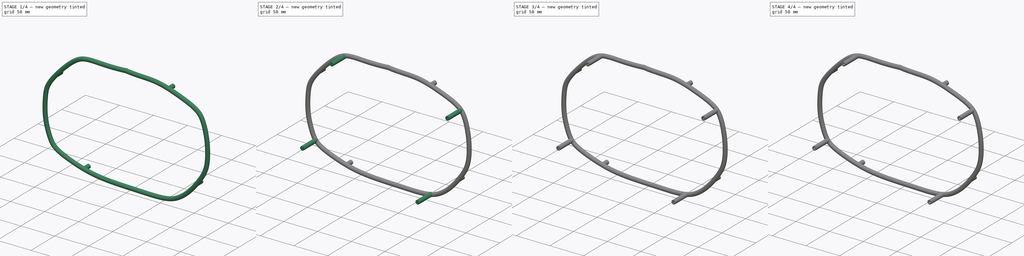
[diagram: build sequence overview — one tinted view per stage of 4, left to right]
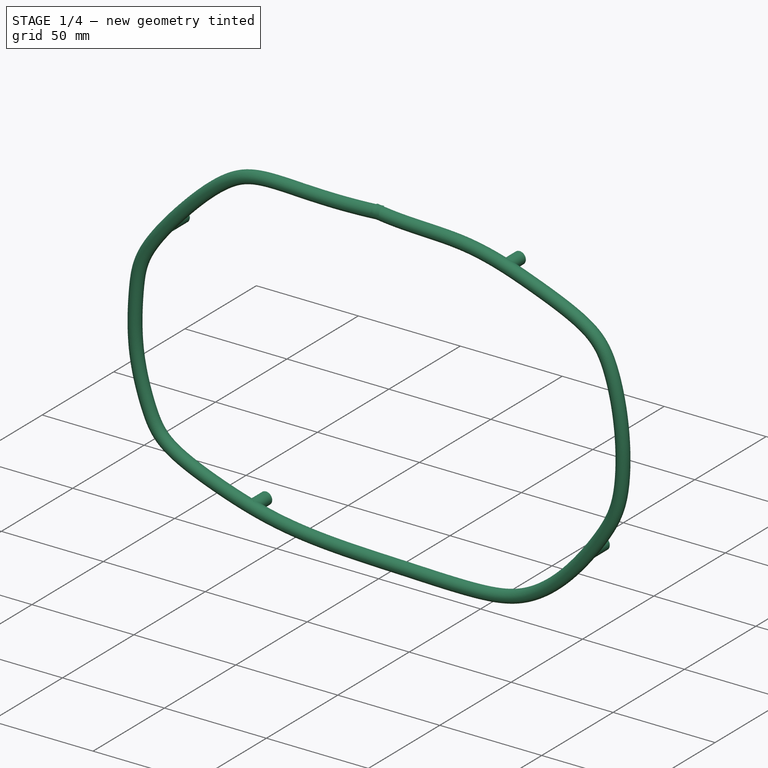
[diagram: stage 1 of 4 — iso view after this stage's code; geometry added in this stage tinted green]
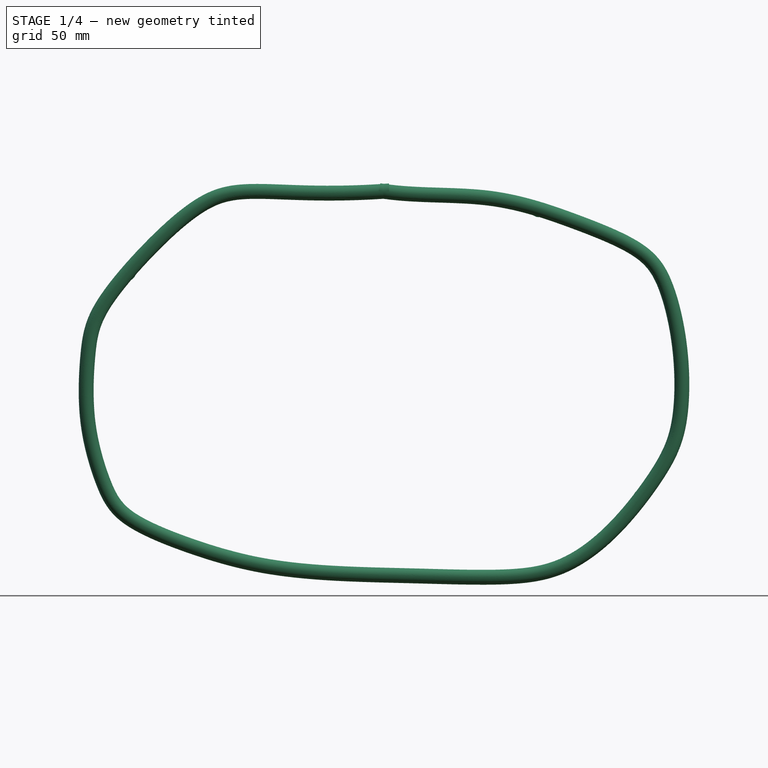
[diagram: stage 1 of 4 — front view after this stage's code; geometry added in this stage tinted green]
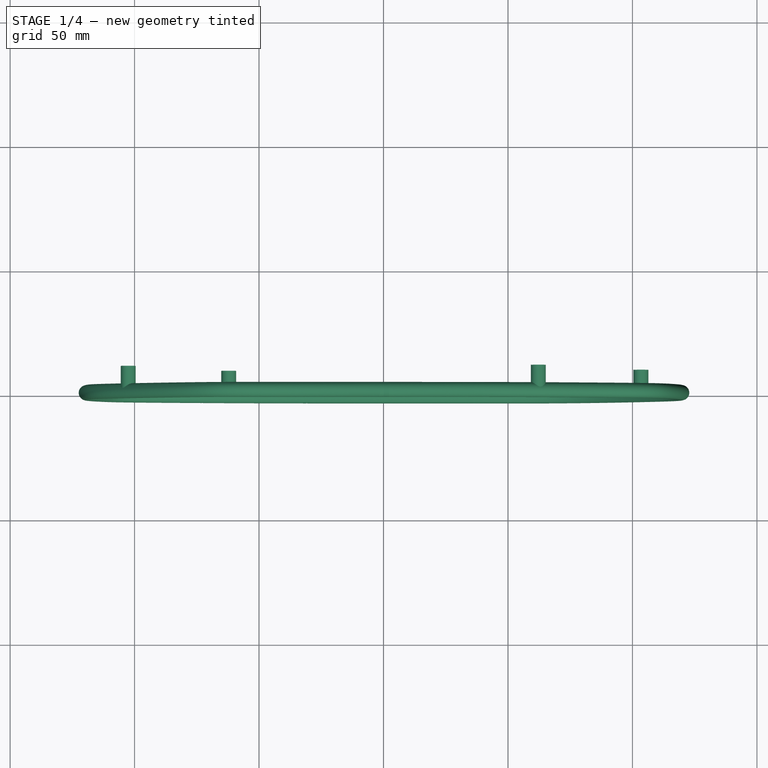
[diagram: stage 1 of 4 — top view after this stage's code; geometry added in this stage tinted green]
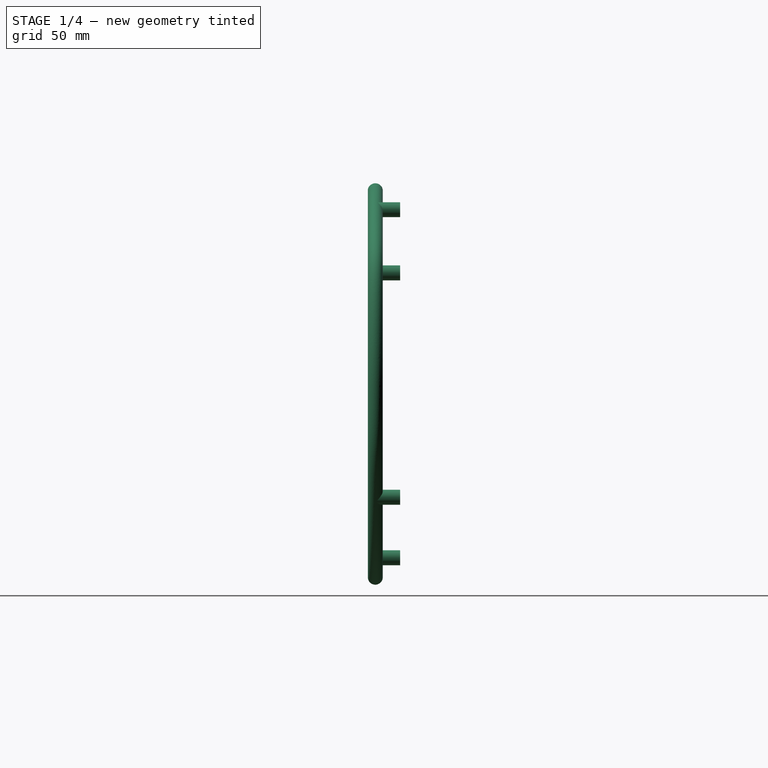
[diagram: stage 1 of 4 — right view after this stage's code; geometry added in this stage tinted green]
FCSTD DOCUMENT  (FreeCAD 0.20R29177 (Git))
Label: pip_feed_ring06
License: All rights reserved
LicenseURL: http://en.wikipedia.org/wiki/All_rights_reserved
objects: Sketcher::SketchObject×9, Part::Extrusion×4, Part::Cut×3, Part::Sweep×2, Part::Fuse×2, Spreadsheet::Sheet×1, PartDesign::Body×1
note: 21 computed .brp shape members not serialized (recipe doc carries the construction recipe); baked Part::Feature solids carry a one-line shape summary decoded from their .brp

FEATURE [Part::Extrusion] Extrude001
  Base = -> Sketch008
  Dir = (0,-1,2e-16)
  DirMode = 2
  FaceMakerClass = Part::FaceMakerBullseye
  LengthFwd = -10
  LengthRev = 0
  Solid = true
  Symmetric = false
FEATURE [Part::Sweep] Sweep
  Frenet = false
  Sections = -> [Sketch003]
  Solid = true
  Spine = -> Sketch002 [Edge1]
  Transition = 1
FEATURE [Part::Sweep] Sweep001
  Frenet = false
  Sections = -> [Sketch004]
  Solid = true
  Spine = -> Sketch002 [Edge1]
  Transition = 1
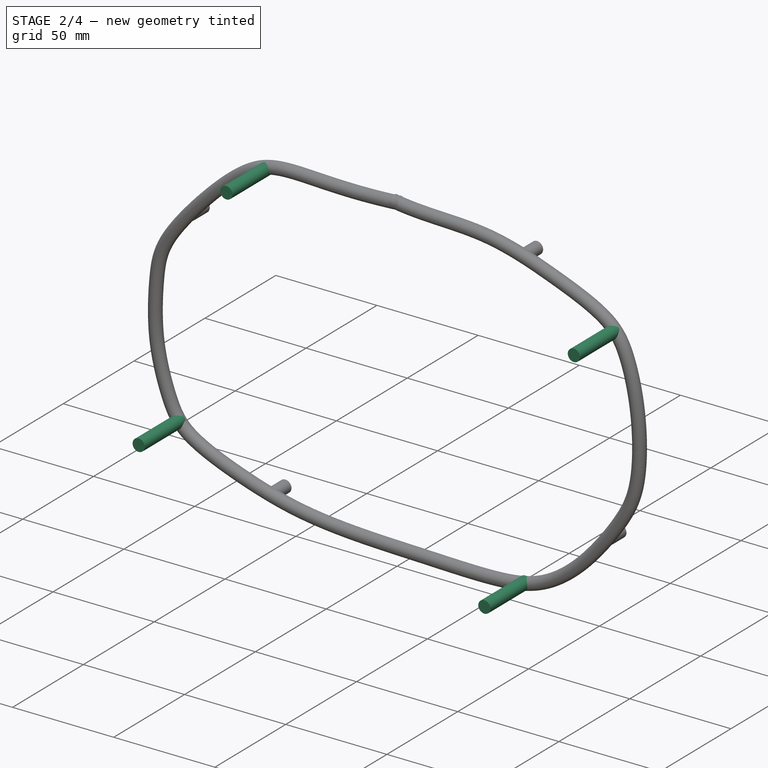
[diagram: stage 2 of 4 — iso view after this stage's code; geometry added in this stage tinted green]
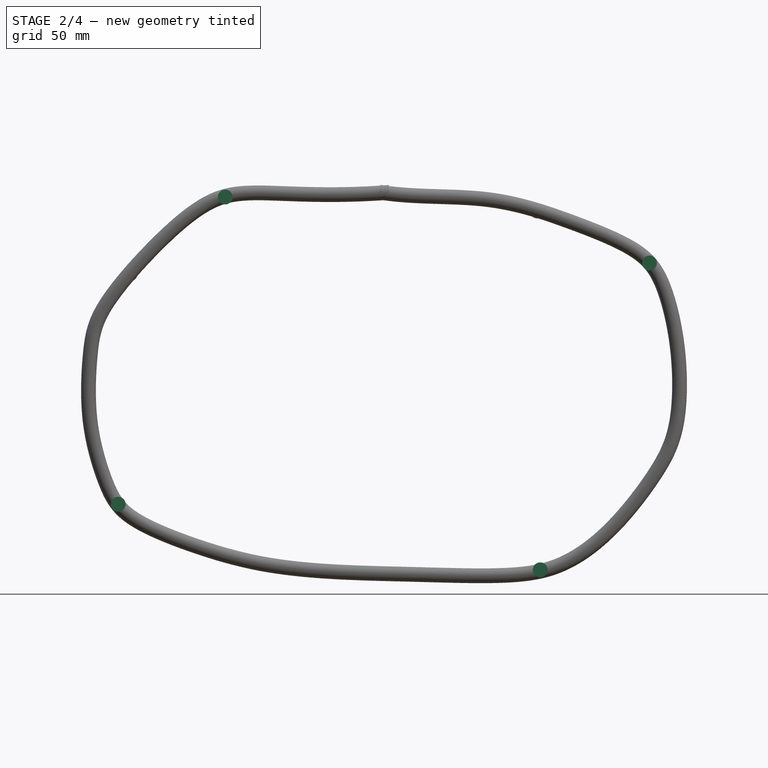
[diagram: stage 2 of 4 — front view after this stage's code; geometry added in this stage tinted green]
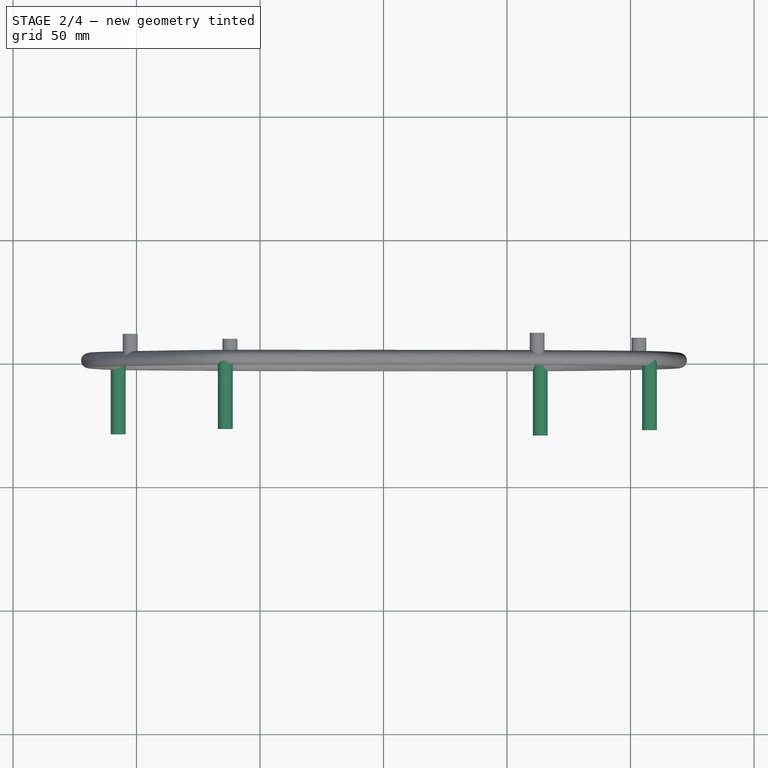
[diagram: stage 2 of 4 — top view after this stage's code; geometry added in this stage tinted green]
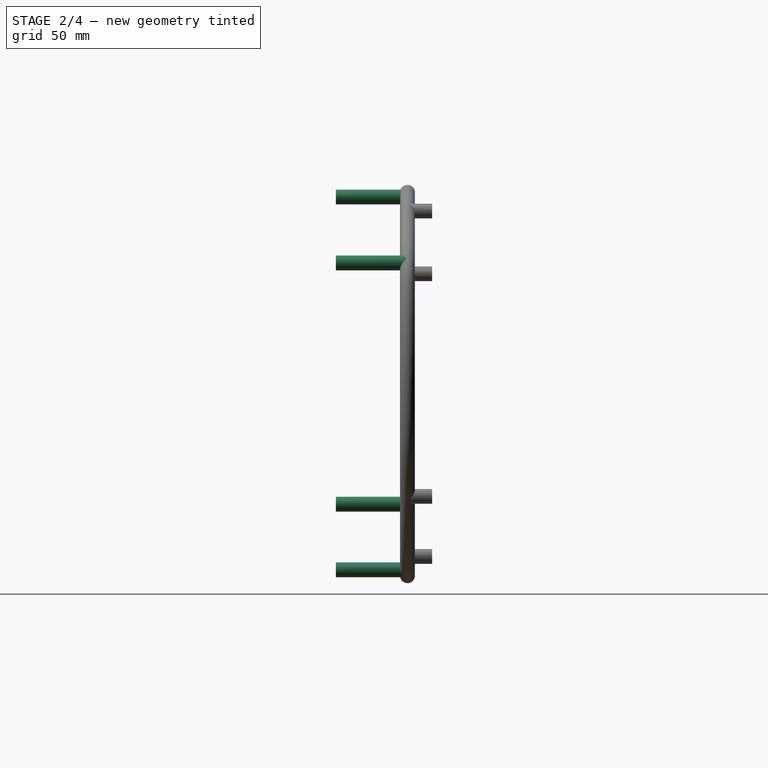
[diagram: stage 2 of 4 — right view after this stage's code; geometry added in this stage tinted green]
FEATURE [Spreadsheet::Sheet] Spreadsheet
  cells = B2=top ; C2=spring; D2=module; B4=horizon; C4(hrz)=230; E4=pip rad; F4=in; G4(pip_in)=1.5; B5=vertical; C5(vrt)=145; F5=out; G5(pip_out)=3; B6=spring place; C6(spl)=30; B7=angle10; C7(an10)=5; E7=con pip; F7=in; G7(con_in)=10; B8=angle20; C8(an20)=15; F8=0ut; G8(con_out)=29; B9=angl30; C9(an30)=30; B10=angl50; C10(an50)=50; B11=an70; C11(an70)=70; B12=body; C12(body)=15; B13=bottm; C13(btm)=2
FEATURE [Sketcher::SketchObject] Sketch
  FullyConstrained = false
  MapMode = 5
  Placement = pos=(0,0,0) rot=(1,0,0;1.5708rad)
  Support = -> [XZ_Plane]
  expr: Constraints[11] = Spreadsheet.hrz
  expr: Constraints[13] = Spreadsheet.an10
  expr: Constraints[15] = Spreadsheet.spl
  expr: Constraints[16] = Spreadsheet.an20
  expr: Constraints[18] = Spreadsheet.an30
  expr: Constraints[20] = Spreadsheet.spl
  expr: Constraints[21] = Spreadsheet.an50
  expr: Constraints[24] = Spreadsheet.an70
  expr: Constraints[2] = Spreadsheet.spl
  expr: Constraints[6] = Spreadsheet.vrt
  expr: Constraints[7] = Spreadsheet.spl
  sketch-geometry (48):
    g0: LineSegment StartX=-115 StartY=15 StartZ=0 EndX=-115 EndY=-15 EndZ=0
    g1: LineSegment StartX=115 StartY=15 StartZ=0 EndX=115 EndY=-15 EndZ=0
    g2: LineSegment StartX=-15 StartY=72.5 StartZ=0 EndX=15 EndY=72.5 EndZ=0
    g3: LineSegment StartX=-15 StartY=-72.5 StartZ=0 EndX=15 EndY=-72.5 EndZ=0
    g4: LineSegment StartX=15 StartY=72.5 StartZ=0 EndX=46.6098 EndY=69.7345 EndZ=0
    g5: LineSegment StartX=46.6098 StartY=69.7345 StartZ=0 EndX=75.5875 EndY=61.9699 EndZ=0
    g6: LineSegment StartX=75.5875 StartY=61.9699 StartZ=0 EndX=90.0175 EndY=53.6388 EndZ=0
    g7: LineSegment StartX=90.0175 StartY=53.6388 StartZ=0 EndX=109.301 EndY=30.6574 EndZ=0
    g8: LineSegment StartX=109.301 StartY=30.6574 StartZ=0 EndX=115 EndY=15 EndZ=0
    g9: LineSegment StartX=-15 StartY=72.5 StartZ=0 EndX=-46.6098 EndY=69.7345 EndZ=0
    g10: LineSegment StartX=-46.6098 StartY=69.7345 StartZ=0 EndX=-75.5875 EndY=61.9699 EndZ=0
    g11: LineSegment StartX=-75.5875 StartY=61.9699 StartZ=0 EndX=-90.0175 EndY=53.6388 EndZ=0
    g12: LineSegment StartX=-90.0175 StartY=53.6388 StartZ=0 EndX=-109.301 EndY=30.6574 EndZ=0
    g13: LineSegment StartX=-109.301 StartY=30.6574 StartZ=0 EndX=-115 EndY=15 EndZ=0
    g14: LineSegment StartX=-115 StartY=-15 StartZ=0 EndX=-109.301 EndY=-30.6574 EndZ=0
    g15: LineSegment StartX=-109.301 StartY=-30.6574 StartZ=0 EndX=-90.0175 EndY=-53.6388 EndZ=0
    g16: LineSegment StartX=-90.0175 StartY=-53.6388 StartZ=0 EndX=-75.5875 EndY=-61.9699 EndZ=0
    g17: LineSegment StartX=-75.5875 StartY=-61.9699 StartZ=0 EndX=-46.6098 EndY=-69.7345 EndZ=0
    g18: LineSegment StartX=-46.6098 StartY=-69.7345 StartZ=0 EndX=-15 EndY=-72.5 EndZ=0
    g19: LineSegment StartX=15 StartY=-72.5 StartZ=0 EndX=46.6098 EndY=-69.7345 EndZ=0
    g20: LineSegment StartX=46.6098 StartY=-69.7345 StartZ=0 EndX=75.5875 EndY=-61.9699 EndZ=0
    g21: LineSegment StartX=75.5875 StartY=-61.9699 StartZ=0 EndX=90.0175 EndY=-53.6388 EndZ=0
    g22: LineSegment StartX=90.0175 StartY=-53.6388 StartZ=0 EndX=109.301 EndY=-30.6574 EndZ=0
    g23: LineSegment StartX=109.301 StartY=-30.6574 StartZ=0 EndX=115 EndY=-15 EndZ=0
    g24: LineSegment StartX=-16.1366 StartY=78.5 StartZ=0 EndX=15.4095 EndY=78.5 EndZ=0
    g25: LineSegment StartX=15.4095 StartY=78.5 StartZ=0 EndX=47.6441 EndY=75.6667 EndZ=0
    g26: LineSegment StartX=47.6441 StartY=75.6667 StartZ=0 EndX=77.2705 EndY=67.9998 EndZ=0
    g27: LineSegment StartX=77.2705 StartY=67.9998 StartZ=0 EndX=95.3281 EndY=56.6387 EndZ=0
    g28: LineSegment StartX=95.3281 StartY=56.6387 StartZ=0 EndX=114.698 EndY=33.4043 EndZ=0
    g29: LineSegment StartX=114.698 StartY=33.4043 StartZ=0 EndX=121 EndY=15.3335 EndZ=0
    g30: LineSegment StartX=121 StartY=15.3335 StartZ=0 EndX=121 EndY=-16.058 EndZ=0
    g31: LineSegment StartX=121 StartY=-16.058 StartZ=0 EndX=114.609 EndY=-33.6162 EndZ=0
    g32: LineSegment StartX=114.609 StartY=-33.6162 StartZ=0 EndX=95.0311 EndY=-56.9971 EndZ=0
    g33: LineSegment StartX=95.0311 StartY=-56.9971 StartZ=0 EndX=76.551 EndY=-68.4292 EndZ=0
    g34: LineSegment StartX=76.551 StartY=-68.4292 StartZ=0 EndX=47.3548 EndY=-75.733 EndZ=0
    g35: LineSegment StartX=47.3548 StartY=-75.733 StartZ=0 EndX=15 EndY=-78.5 EndZ=0
    g36: LineSegment StartX=15 StartY=-78.5 StartZ=0 EndX=-15.3942 EndY=-78.5 EndZ=0
    g37: LineSegment StartX=-15.3942 StartY=-78.5 StartZ=0 EndX=-48.4588 EndY=-75.5952 EndZ=0
    g38: LineSegment StartX=-48.4588 StartY=-75.5952 StartZ=0 EndX=-78.4241 EndY=-67.4604 EndZ=0
    g39: LineSegment StartX=-78.4241 StartY=-67.4604 StartZ=0 EndX=-95.6316 EndY=-57.2903 EndZ=0
    g40: LineSegment StartX=-95.6316 StartY=-57.2903 StartZ=0 EndX=-114.801 EndY=-33.3899 EndZ=0
    g41: LineSegment StartX=-114.801 StartY=-33.3899 StartZ=0 EndX=-121 EndY=-16.0847 EndZ=0
    g42: LineSegment StartX=-121 StartY=-16.0847 StartZ=0 EndX=-121 EndY=15.8705 EndZ=0
    g43: LineSegment StartX=-121 StartY=15.8705 StartZ=0 EndX=-116.314 EndY=31.6792 EndZ=0
    g44: LineSegment StartX=-116.314 StartY=31.6792 StartZ=0 EndX=-93.3221 EndY=58.6532 EndZ=0
    g45: LineSegment StartX=-93.3221 StartY=58.6532 StartZ=0 EndX=-78.9524 EndY=67.2703 EndZ=0
    g46: LineSegment StartX=-78.9524 StartY=67.2703 StartZ=0 EndX=-48.5294 EndY=75.586 EndZ=0
    g47: LineSegment StartX=-48.5294 StartY=75.586 StartZ=0 EndX=-16.1366 EndY=78.5 EndZ=0
  constraints (106):
    c: Vertical(g0)
    c: Horizontal(g3)
    c: DistanceX(g2,g2) = 30
    c: Symmetric(g2,g2,g-2)
    c: Equal(g3,g2)
    c: Symmetric(g2,g3,g-1)
    c: Distance(g3,g2) = 145
    c: DistanceY(g1,g1) = 30
    c: Equal(g1,g0)
    c: Symmetric(g1,g1,g-1)
    c: Symmetric(g1,g0,g-1)
    c: Distance(g1,g0) = 230
    c: Coincident(g4,g2)
    c: Angle(g4,g-1) = 0.0872665
    c: Coincident(g5,g4)
    c: Distance(g4,g5) = 30
    c: Angle(g5,g-1) = 0.261799
    c: Coincident(g6,g5)
    c: Angle(g6,g-1) = 0.523599
    c: Coincident(g7,g6)
    c: Distance(g6,g7) = 30
    c: Angle(g7,g-1) = 0.872665
    c: Coincident(g8,g7)
    c: Coincident(g8,g1)
    c: Angle(g8,g-1) = 1.22173
    c: Equal(g6,g8)
    c: Coincident(g9,g2)
    c: Symmetric(g9,g4,g-2)
    c: Coincident(g10,g9)
    c: Symmetric(g10,g5,g-2)
    c: Coincident(g11,g10)
    c: Symmetric(g11,g6,g-2)
    c: Coincident(g12,g11)
    c: Symmetric(g12,g7,g-2)
    c: Coincident(g13,g12)
    c: Coincident(g13,g0)
    c: Coincident(g14,g0)
    c: Coincident(g15,g14)
    c: Coincident(g16,g15)
    c: Coincident(g17,g16)
    c: Coincident(g18,g17)
    c: Coincident(g18,g3)
    c: Symmetric(g14,g7,g-1)
    c: Symmetric(g15,g6,g-1)
    c: Symmetric(g16,g5,g-1)
    c: Symmetric(g17,g4,g-1)
    c: Coincident(g19,g3)
    c: Coincident(g20,g19)
    c: Coincident(g21,g20)
    c: Coincident(g22,g21)
    c: Coincident(g23,g22)
    c: Coincident(g23,g1)
    c: Symmetric(g19,g4,g-1)
    c: Symmetric(g20,g5,g-1)
    c: Symmetric(g21,g6,g-1)
    c: Symmetric(g22,g7,g-1)
    c: Horizontal(g24)
    c: Coincident(g24,g25)
    c: Coincident(g25,g26)
    c: Coincident(g26,g27)
    c: Coincident(g27,g28)
    c: Coincident(g28,g29)
    c: Coincident(g29,g30)
    c: Vertical(g30)
    c: Coincident(g30,g31)
    c: Coincident(g31,g32)
    c: Coincident(g32,g33)
    c: Coincident(g33,g34)
    c: Coincident(g34,g35)
    c: Coincident(g35,g36)
    c: Horizontal(g36)
    c: Coincident(g36,g37)
    c: Coincident(g37,g38)
    c: Coincident(g38,g39)
    c: Coincident(g39,g40)
    c: Coincident(g40,g41)
    c: Coincident(g41,g42)
    c: Vertical(g42)
    c: Coincident(g42,g43)
    c: Coincident(g43,g44)
    c: Coincident(g44,g45)
    c: Coincident(g45,g46)
    c: Coincident(g46,g47)
    c: Coincident(g47,g24)
    c: Distance(g9,g47) = 6
    c: Distance(g2,g24) = 6
    c: Distance(g4,g25) = 6
    c: Distance(g5,g27) = 6
    c: Distance(g6,g28) = 6
    c: Distance(g7,g29) = 6
    c: Distance(g1,g30) = 6
    c: Distance(g1,g31) = 6
    c: Distance(g22,g31) = 6
    c: Distance(g21,g32) = 6
    c: Distance(g20,g33) = 6
    c: Distance(g19,g34) = 6
    c: Distance(g3,g35) = 6
    c: Distance(g3,g36) = 6
    c: Distance(g17,g37) = 6
    c: Distance(g15,g39) = 6
    c: Distance(g14,g40) = 6
    c: Distance(g0,g42) = 6
    c: Distance(g0,g43) = 6
    c: Distance(g12,g44) = 6
    c: Distance(g11,g45) = 6
    c: Distance(g10,g46) = 6
FEATURE [Sketcher::SketchObject] Sketch002  label="pipax"
  ExternalGeometry = -> [Sketch]
  FullyConstrained = false
  MapMode = 5
  Placement = pos=(0,0,0) rot=(1,0,0;1.5708rad)
  Support = -> [XZ_Plane]
  sketch-geometry (55):
    g0-g25: Circle x26 (B-spline internal-alignment scaffolding for g26; pole/knot coordinates omitted)
    g26: BSplineCurve PolesCount=26 KnotsCount=24 Degree=3 IsPeriodic=0
    g27-g50: GeomPoint x24 (B-spline internal-alignment scaffolding for g26; pole/knot coordinates omitted)
    g51: GeomPoint X=106.527 Y=47.9649 Z=0
    g52: GeomPoint X=63.3932 Y=-74.5549 Z=0
    g53: GeomPoint X=-106.573 Y=-47.9104 Z=0
    g54: GeomPoint X=-63.1926 Y=74.6086 Z=0
  constraints (10):
    c: Weight(g0) = 1
    c: PointOnObject(g26,g-2)
    c: Equal(g0, g1-g25) x25
    c: Coincident(g26,g0)
    c: InternalAlignment(g0-g25 -> g26) x26
    c: InternalAlignment(g27-g50 -> g26) x24
    c: Distance(g51,g-3) = 9
    c: Distance(g52,g-4) = 9
    c: Distance(g53,g-5) = 9
    c: Distance(g54,g-6) = 9
FEATURE [Sketcher::SketchObject] Sketch003  label="piprad"
  FullyConstrained = false
  MapMode = 5
  Placement = pos=(0,0,0) rot=(0.57735,0.57735,0.57735;2.0944rad)
  Support = -> [YZ_Plane]
  expr: Constraints[0] = Spreadsheet.pip_out
  sketch-geometry (1):
    g0: Circle CenterX=0 CenterY=77.404 CenterZ=0 NormalX=0 NormalY=0 NormalZ=1 AngleXU=0 Radius=3
  constraints (1):
    c: Radius(g0) = 3
FEATURE [PartDesign::Body] Body
  Group = -> [Sketch,Sketch002,Sketch003]
  Origin = -> Origin
FEATURE [Sketcher::SketchObject] Sketch004  label="holerad"
  ExternalGeometry = -> [Sketch003]
  FullyConstrained = true
  Placement = pos=(0,0,0) rot=(0.57735,0.57735,0.57735;2.0944rad)
  expr: Constraints[1] = Spreadsheet.pip_in
  sketch-geometry (1):
    g0: Circle CenterX=0 CenterY=77.404 CenterZ=0 NormalX=0 NormalY=0 NormalZ=1 AngleXU=0 Radius=1.5
  constraints (2):
    c: Coincident(g0,g-3)
    c: Radius(g0) = 1.5
FEATURE [Sketcher::SketchObject] Sketch006  label="lines"
  ExternalGeometry = -> [Sketch]
  FullyConstrained = false
  Placement = pos=(0,0,0) rot=(1,0,0;1.5708rad)
  sketch-geometry (17):
    g0: LineSegment StartX=-65.9399 StartY=83.9199 StartZ=0 EndX=-55.4291 EndY=44.6931 EndZ=0
    g1: LineSegment StartX=66.4508 StartY=85.8268 StartZ=0 EndX=55.0346 EndY=43.2208 EndZ=0
    g2: LineSegment StartX=121.812 StartY=60.7363 StartZ=0 EndX=81.9764 EndY=27.3104 EndZ=0
    g3: LineSegment StartX=85.9194 StartY=-30.6189 StartZ=0 EndX=124.635 EndY=-63.1053 EndZ=0
    g4: LineSegment StartX=55.9055 StartY=-46.4712 StartZ=0 EndX=68.4937 EndY=-93.451 EndZ=0
    g5: LineSegment StartX=-57.204 StartY=-51.3171 StartZ=0 EndX=-68.1402 EndY=-92.1316 EndZ=0
    g6: LineSegment StartX=-85.9506 StartY=-30.6451 StartZ=0 EndX=-121.593 EndY=-60.5523 EndZ=0
    g7: LineSegment StartX=-84.1134 StartY=29.1036 StartZ=0 EndX=-121.705 EndY=60.6464 EndZ=0
    g8: GeomPoint X=61.0987 Y=65.8522 Z=0
    g9: GeomPoint X=68.9904 Y=56.0366 Z=0
    g10: GeomPoint X=99.6593 Y=42.1481 Z=0
    g11: GeomPoint X=99.6593 Y=-42.1481 Z=0
    g12: GeomPoint X=61.0987 Y=-65.8522 Z=0
    g13: GeomPoint X=-61.0987 Y=-65.8522 Z=0
    g14: GeomPoint X=-99.6593 Y=-42.1481 Z=0
    g15: GeomPoint X=-99.6593 Y=42.1481 Z=0
    g16: GeomPoint X=-61.0987 Y=65.8522 Z=0
  constraints (24):
    c: Perpendicular(g1,g-4)
    c: Perpendicular(g2,g-5)
    c: Perpendicular(g3,g-7)
    c: Perpendicular(g4,g-8)
    c: Perpendicular(g5,g-9)
    c: Perpendicular(g6,g-10)
    c: Perpendicular(g7,g-11)
    c: Perpendicular(g0,g-3)
    c: PointOnObject(g8,g1)
    c: Symmetric(g-4,g-4,g8)
    c: PointOnObject(g10,g2)
    c: Symmetric(g-5,g-5,g10)
    c: PointOnObject(g11,g3)
    c: Symmetric(g-7,g-7,g11)
    c: PointOnObject(g12,g4)
    c: Symmetric(g-8,g-8,g12)
    c: PointOnObject(g13,g5)
    c: Symmetric(g-9,g-9,g13)
    c: PointOnObject(g14,g6)
    c: Symmetric(g-10,g-10,g14)
    c: PointOnObject(g15,g7)
    c: Symmetric(g-11,g-11,g15)
    c: PointOnObject(g16,g0)
    c: Symmetric(g-3,g-3,g16)
FEATURE [Sketcher::SketchObject] Sketch007  label="airout"
  ExternalGeometry = -> [Sketch002]
  FullyConstrained = false
  Placement = pos=(0,0,0) rot=(1,0,0;1.5708rad)
  expr: Constraints[0] = Spreadsheet.pip_out
  expr: Constraints[1] = Spreadsheet.pip_out
  expr: Constraints[2] = Spreadsheet.pip_out
  expr: Constraints[3] = Spreadsheet.pip_out
  sketch-geometry (4):
    g0: Circle CenterX=107.682 CenterY=48.9965 CenterZ=0 NormalX=0 NormalY=0 NormalZ=1 AngleXU=0 Radius=3
    g1: Circle CenterX=63.4523 CenterY=-75.2345 CenterZ=0 NormalX=0 NormalY=0 NormalZ=1 AngleXU=0 Radius=3
    g2: Circle CenterX=-107.407 CenterY=-48.6632 CenterZ=0 NormalX=0 NormalY=0 NormalZ=1 AngleXU=0 Radius=3
    g3: Circle CenterX=-64.0549 CenterY=75.6882 CenterZ=0 NormalX=0 NormalY=0 NormalZ=1 AngleXU=0 Radius=3
  constraints (4):
    c: Radius(g0) = 3
    c: Radius(g3) = 3
    c: Radius(g2) = 3
    c: Radius(g1) = 3
FEATURE [Sketcher::SketchObject] Sketch008  label="airin"
  ExternalGeometry = -> [Sketch002]
  FullyConstrained = false
  Placement = pos=(0,0,0) rot=(1,0,0;1.5708rad)
  expr: Constraints[0] = Spreadsheet.pip_out
  expr: Constraints[1] = Spreadsheet.pip_out
  expr: Constraints[2] = Spreadsheet.pip_out
  expr: Constraints[3] = Spreadsheet.pip_out
  sketch-geometry (4):
    g0: Circle CenterX=-102.566 CenterY=44.6339 CenterZ=0 NormalX=0 NormalY=0 NormalZ=1 AngleXU=0 Radius=3
    g1: Circle CenterX=62.1979 CenterY=70.0257 CenterZ=0 NormalX=0 NormalY=0 NormalZ=1 AngleXU=0 Radius=3
    g2: Circle CenterX=-62.1783 CenterY=-69.8014 CenterZ=0 NormalX=0 NormalY=0 NormalZ=1 AngleXU=0 Radius=3
    g3: Circle CenterX=103.379 CenterY=-45.5066 CenterZ=0 NormalX=0 NormalY=0 NormalZ=1 AngleXU=0 Radius=3
  constraints (4):
    c: Radius(g3) = 3
    c: Radius(g2) = 3
    c: Radius(g0) = 3
    c: Radius(g1) = 3
FEATURE [Part::Extrusion] Extrude
  Base = -> Sketch007
  Dir = (0,-1,2e-16)
  DirMode = 2
  FaceMakerClass = Part::FaceMakerBullseye
  LengthFwd = 29
  LengthRev = 0
  Solid = true
  Symmetric = false
FEATURE [Part::Fuse] Fusion
  Base = -> Extrude001
  Tool = -> Sweep
FEATURE [Part::Fuse] Fusion001
  Base = -> Extrude
  Tool = -> Fusion
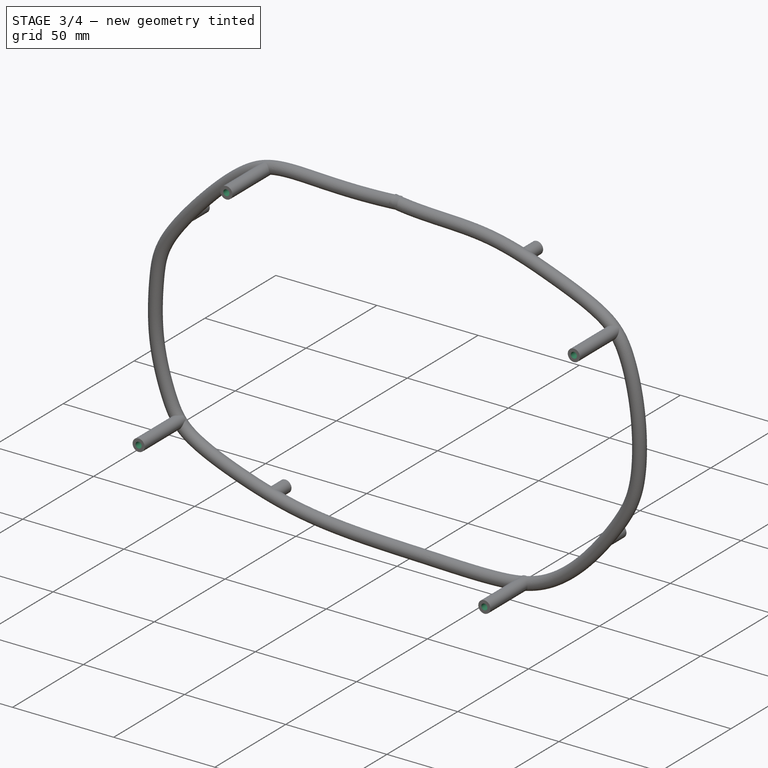
[diagram: stage 3 of 4 — iso view after this stage's code; geometry added in this stage tinted green]
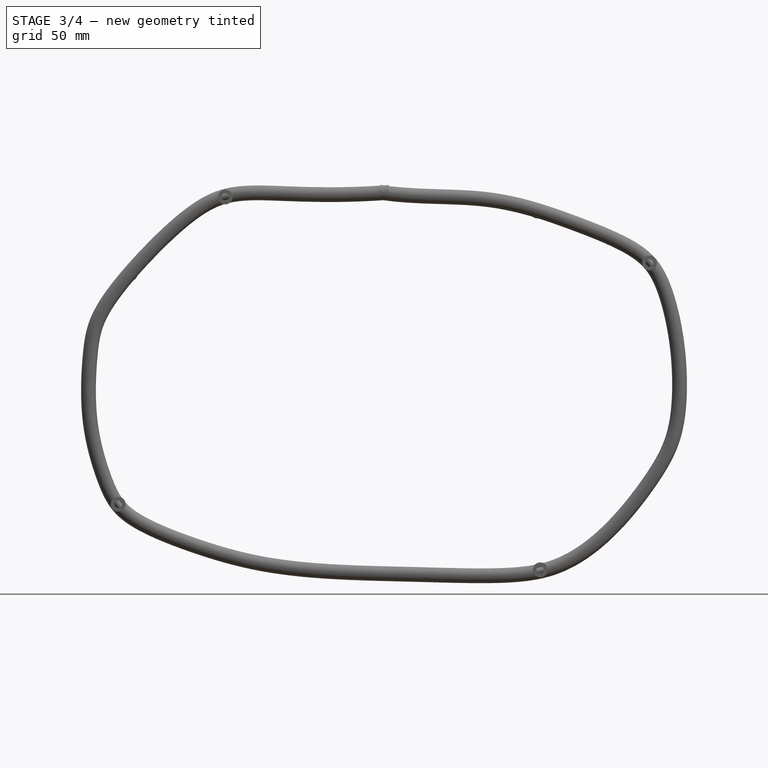
[diagram: stage 3 of 4 — front view after this stage's code; geometry added in this stage tinted green]
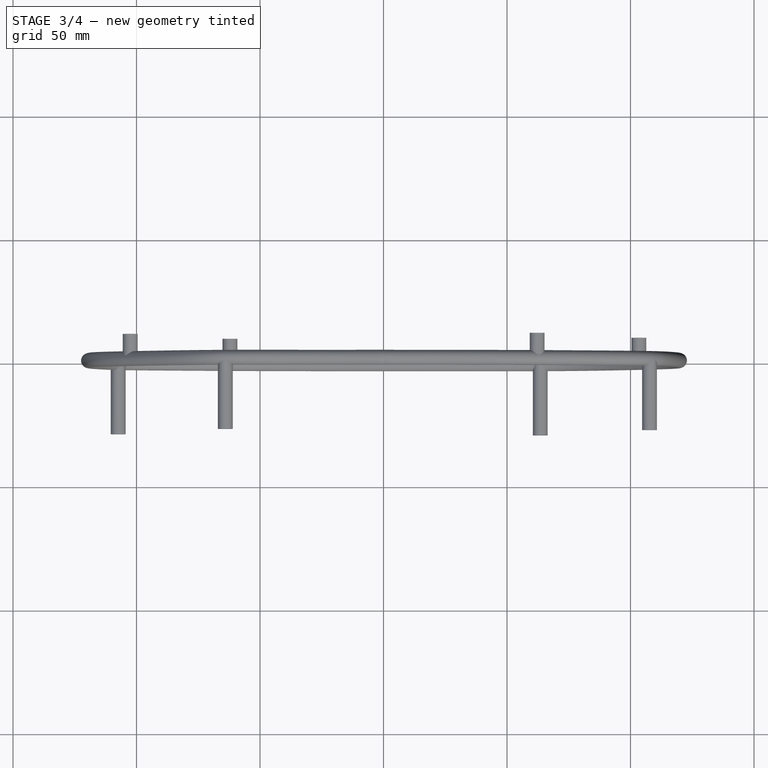
[diagram: stage 3 of 4 — top view after this stage's code; geometry added in this stage tinted green]
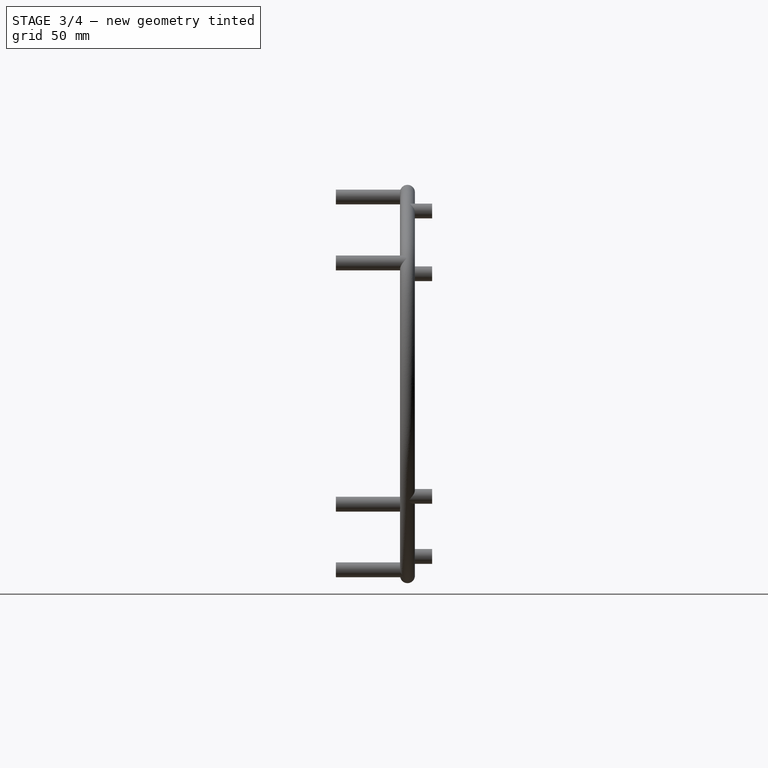
[diagram: stage 3 of 4 — right view after this stage's code; geometry added in this stage tinted green]
FEATURE [Sketcher::SketchObject] Sketch009
  ExternalGeometry = -> [Fusion001]
  FullyConstrained = true
  MapMode = 5
  Placement = pos=(0,-29,6.4e-15) rot=(1,0,0;1.5708rad)
  Support = -> [Fusion001]
  expr: Constraints[4] = Spreadsheet.pip_in
  expr: Constraints[5] = Spreadsheet.pip_in
  expr: Constraints[6] = Spreadsheet.pip_in
  expr: Constraints[7] = Spreadsheet.pip_in
  sketch-geometry (4):
    g0: Circle CenterX=-107.407 CenterY=-48.6632 CenterZ=0 NormalX=0 NormalY=0 NormalZ=1 AngleXU=0 Radius=1.5
    g1: Circle CenterX=63.4523 CenterY=-75.2345 CenterZ=0 NormalX=0 NormalY=0 NormalZ=1 AngleXU=0 Radius=1.5
    g2: Circle CenterX=-64.0549 CenterY=75.6882 CenterZ=0 NormalX=0 NormalY=0 NormalZ=1 AngleXU=0 Radius=1.5
    g3: Circle CenterX=107.682 CenterY=48.9965 CenterZ=0 NormalX=0 NormalY=0 NormalZ=1 AngleXU=0 Radius=1.5
  constraints (8):
    c: Coincident(g0,g-5)
    c: Coincident(g1,g-6)
    c: Coincident(g2,g-3)
    c: Coincident(g3,g-4)
    c: Radius(g2) = 1.5
    c: Radius(g3) = 1.5
    c: Radius(g0) = 1.5
    c: Radius(g1) = 1.5
FEATURE [Part::Extrusion] Extrude002
  Base = -> Sketch009
  Dir = (0,-1,2e-16)
  DirMode = 2
  FaceMakerClass = Part::FaceMakerBullseye
  LengthFwd = -29
  LengthRev = 0
  Solid = true
  Symmetric = false
FEATURE [Part::Cut] Cut
  Base = -> Fusion001
  Tool = -> Extrude002
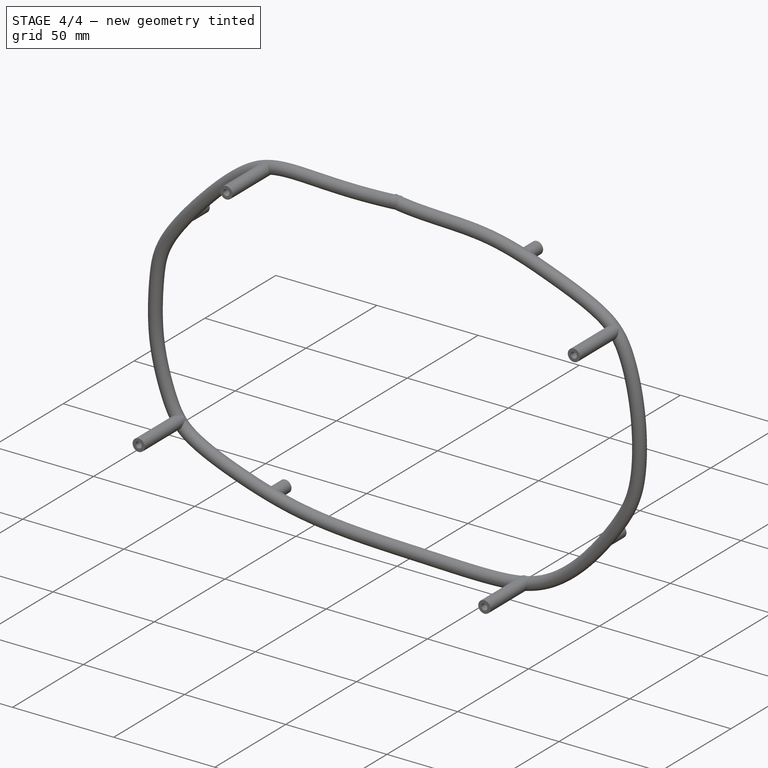
[diagram: stage 4 of 4 — iso view after this stage's code; geometry added in this stage tinted green]
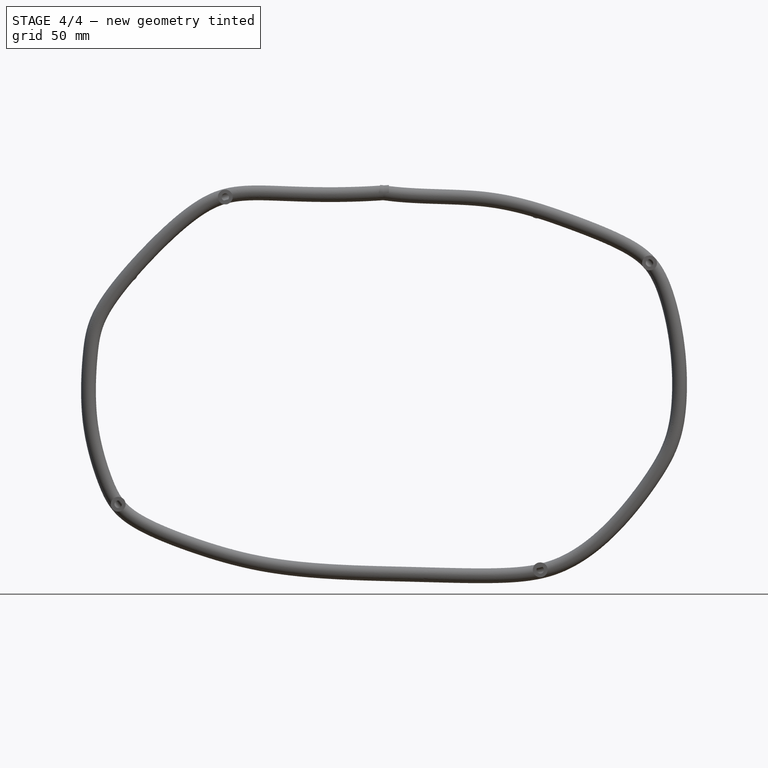
[diagram: stage 4 of 4 — front view after this stage's code; geometry added in this stage tinted green]
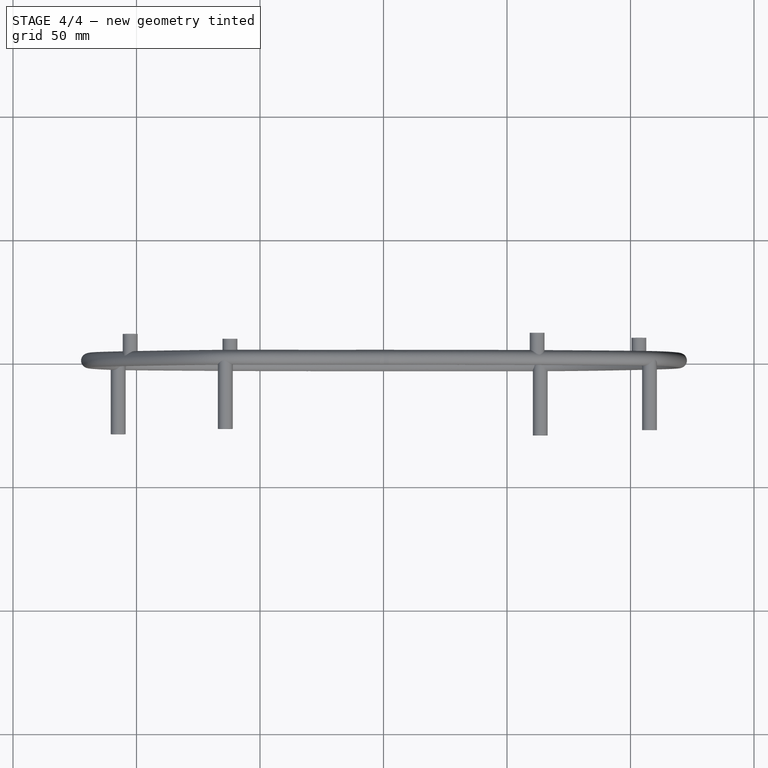
[diagram: stage 4 of 4 — top view after this stage's code; geometry added in this stage tinted green]
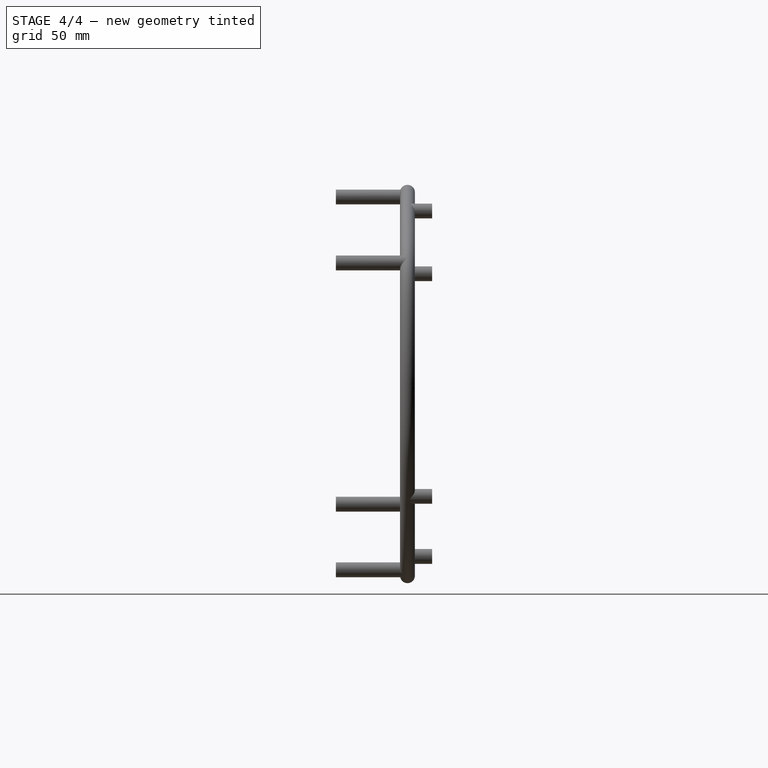
[diagram: stage 4 of 4 — right view after this stage's code; geometry added in this stage tinted green]
FEATURE [Sketcher::SketchObject] Sketch010
  ExternalGeometry = -> [Cut]
  FullyConstrained = true
  MapMode = 5
  Placement = pos=(0,10,-2.2e-15) rot=(0,0.707107,0.707107;3.14159rad)
  Support = -> [Cut]
  expr: Constraints[4] = Spreadsheet.pip_in
  expr: Constraints[5] = Spreadsheet.pip_in
  expr: Constraints[6] = Spreadsheet.pip_in
  expr: Constraints[7] = Spreadsheet.pip_in
  sketch-geometry (4):
    g0: Circle CenterX=-62.1979 CenterY=70.0257 CenterZ=0 NormalX=0 NormalY=0 NormalZ=1 AngleXU=0 Radius=1.5
    g1: Circle CenterX=102.566 CenterY=44.6339 CenterZ=0 NormalX=0 NormalY=0 NormalZ=1 AngleXU=0 Radius=1.5
    g2: Circle CenterX=62.1783 CenterY=-69.8014 CenterZ=0 NormalX=0 NormalY=0 NormalZ=1 AngleXU=0 Radius=1.5
    g3: Circle CenterX=-103.379 CenterY=-45.5066 CenterZ=0 NormalX=0 NormalY=0 NormalZ=1 AngleXU=0 Radius=1.5
  constraints (8):
    c: Coincident(g0,g-3)
    c: Coincident(g1,g-4)
    c: Coincident(g2,g-5)
    c: Coincident(g3,g-6)
    c: Radius(g3) = 1.5
    c: Radius(g0) = 1.5
    c: Radius(g1) = 1.5
    c: Radius(g2) = 1.5
FEATURE [Part::Extrusion] Extrude003
  Base = -> Sketch010
  Dir = (0,1,-2e-16)
  DirMode = 2
  FaceMakerClass = Part::FaceMakerBullseye
  LengthFwd = -10
  LengthRev = 0
  Solid = true
  Symmetric = false
FEATURE [Part::Cut] Cut001
  Base = -> Cut
  Tool = -> Extrude003
FEATURE [Part::Cut] Cut002
  Base = -> Cut001
  Tool = -> Sweep001
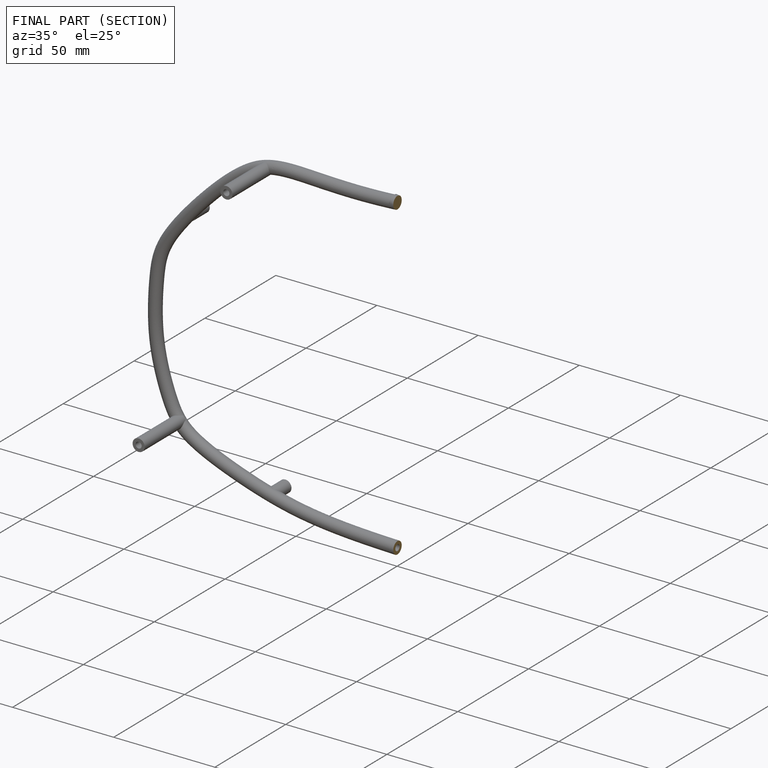
[diagram: finished part — half-section view (interior)]
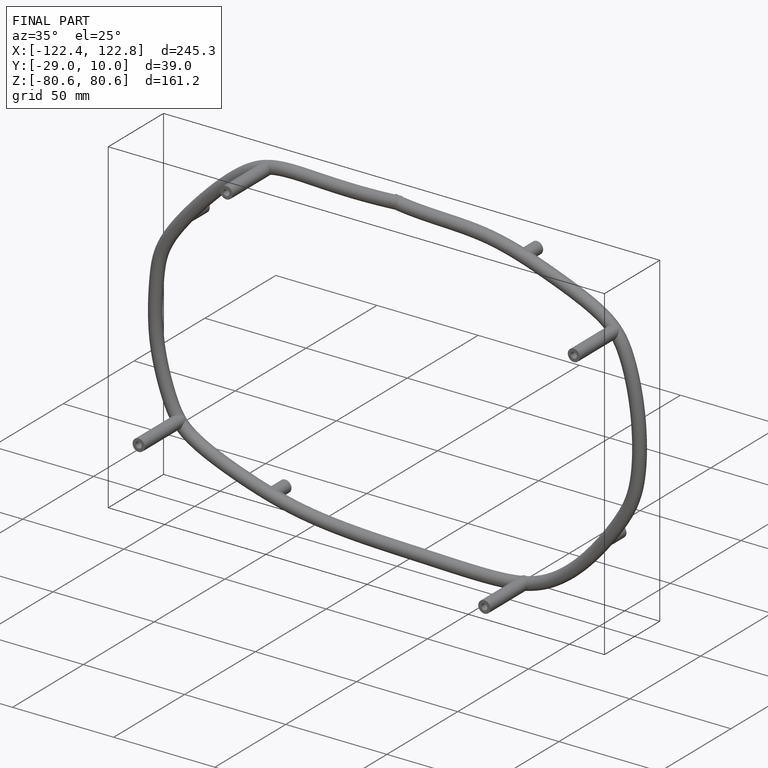
[diagram: finished part — iso view with bounding-box wireframe]
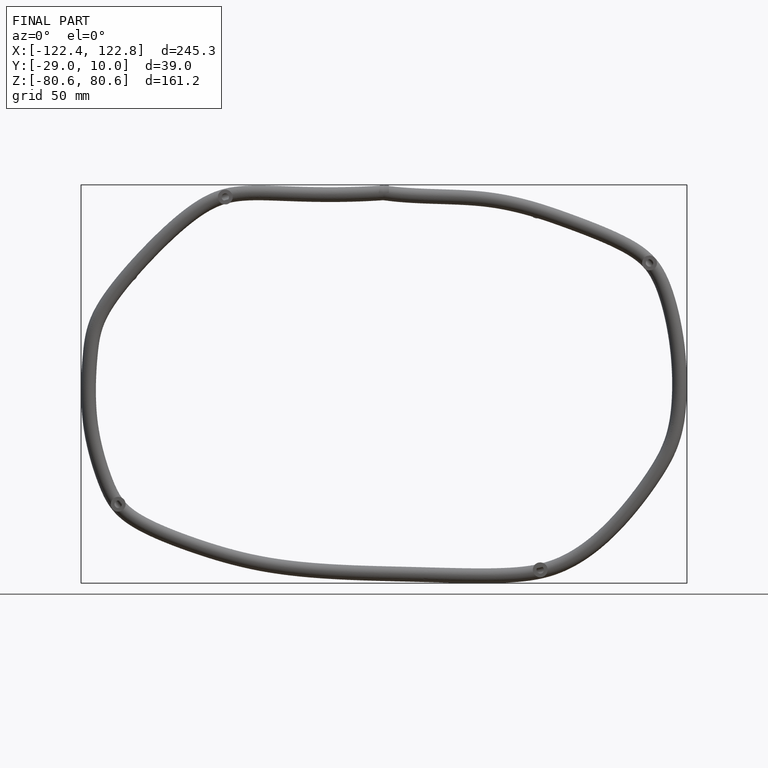
[diagram: finished part — front view with bounding-box wireframe]
